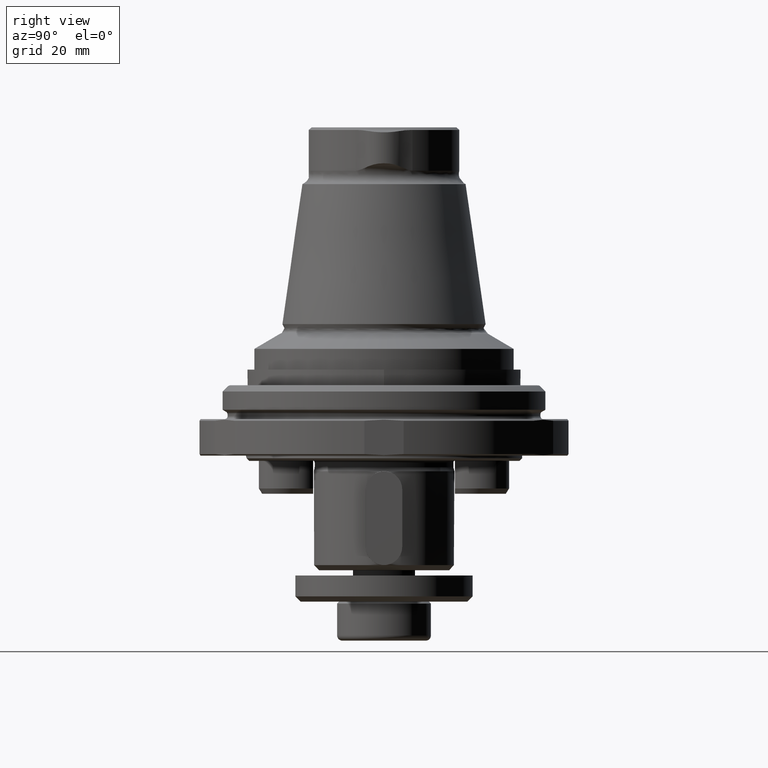
[diagram: clean part render]
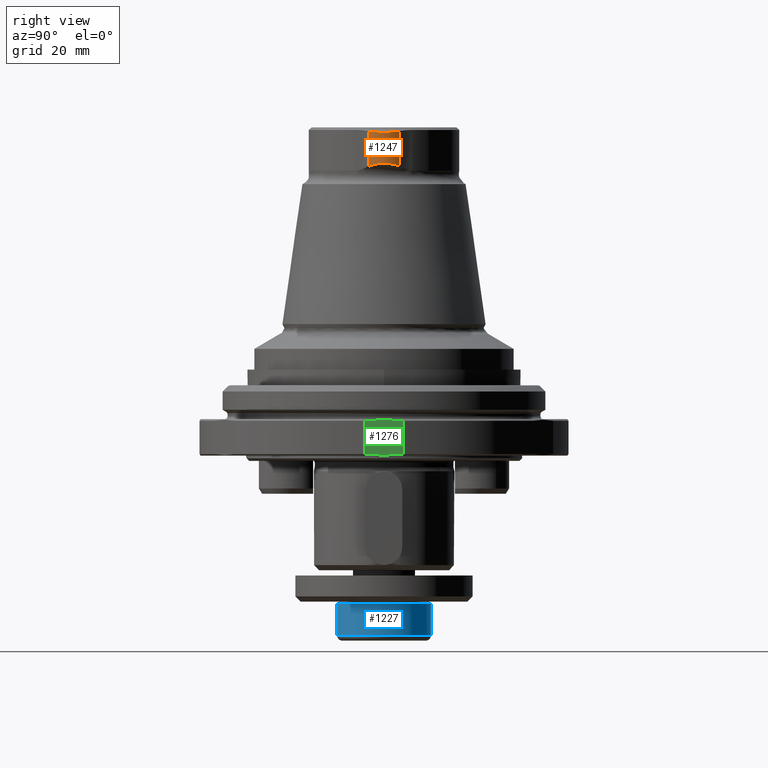
[diagram: same view with three faces highlighted in distinct colors, each labeled with its STEP entity id]
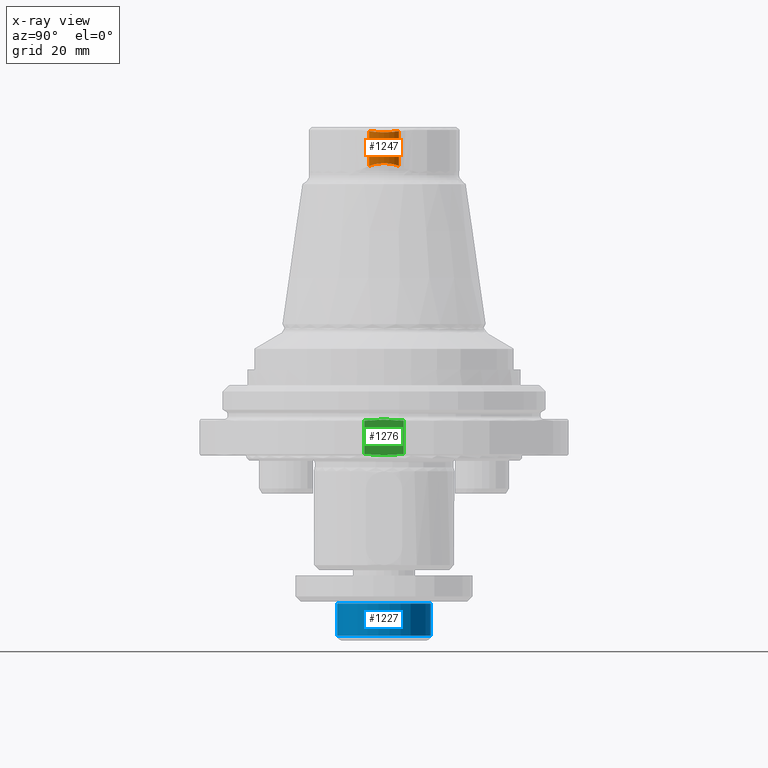
[diagram: x-ray of the same camera — body ghosted, the three highlighted faces saturated]
A machine part, right view with three faces highlighted in distinct colors.
The next image is the same camera in x-ray (body ghosted, the three faces saturated) — at least one of them is partly hidden behind the body in this view.
Their STEP definitions:

[orange] entity #1247 — the highlighted cylindrical surface (edge-blend (fillet) strip) has radius 5 mm, axis along (0, 0, 1).
#141=CYLINDRICAL_SURFACE('',#1387,5.);
#181=LINE('',#2105,#225);
#182=LINE('',#2123,#226);
#225=VECTOR('',#1654,1000.);
#226=VECTOR('',#1661,1000.);
#398=ORIENTED_EDGE('',*,*,#666,.T.);
#399=ORIENTED_EDGE('',*,*,#639,.F.);
#400=ORIENTED_EDGE('',*,*,#662,.F.);
#401=ORIENTED_EDGE('',*,*,#667,.F.);
#402=ORIENTED_EDGE('',*,*,#665,.F.);
#403=ORIENTED_EDGE('',*,*,#668,.F.);
#639=EDGE_CURVE('',#794,#795,#881,.T.);
#662=EDGE_CURVE('',#808,#794,#181,.T.);
#665=EDGE_CURVE('',#809,#810,#892,.T.);
#666=EDGE_CURVE('',#811,#795,#182,.T.);
#667=EDGE_CURVE('',#810,#808,#893,.T.);
#668=EDGE_CURVE('',#811,#809,#894,.T.);
#794=VERTEX_POINT('',#2023);
#795=VERTEX_POINT('',#2029);
#808=VERTEX_POINT('',#2106);
#809=VERTEX_POINT('',#2114);
#810=VERTEX_POINT('',#2115);
#811=VERTEX_POINT('',#2124);
#881=B_SPLINE_CURVE_WITH_KNOTS('',3,(#2024,#2025,#2026,#2027,#2028),
 .UNSPECIFIED.,.F.,.F.,(4,1,4),(2.43235081594486E-7,0.00304463201220103,
0.00608902078932047),.UNSPECIFIED.);
#892=B_SPLINE_CURVE_WITH_KNOTS('',3,(#2116,#2117,#2118,#2119,#2120,#2121),
 .UNSPECIFIED.,.F.,.F.,(4,1,1,4),(6.11526740180767E-7,0.00309143559384419,
0.00463684762739619,0.00618225966094819),.UNSPECIFIED.);
#893=B_SPLINE_CURVE_WITH_KNOTS('',3,(#2125,#2126,#2127,#2128),
 .UNSPECIFIED.,.F.,.F.,(4,4),(6.19763373144005E-7,6.61840456631958E-6),
 .UNSPECIFIED.);
#894=B_SPLINE_CURVE_WITH_KNOTS('',3,(#2129,#2130,#2131,#2132),
 .UNSPECIFIED.,.F.,.F.,(4,4),(2.57948989344727E-7,6.25659018116289E-6),
 .UNSPECIFIED.);
#982=EDGE_LOOP('',(#398,#399,#400,#401,#402,#403));
#1112=FACE_BOUND('',#982,.T.);
#1247=ADVANCED_FACE('',(#1112),#141,.T.);
#1387=AXIS2_PLACEMENT_3D('',#2122,#1659,#1660);
#1654=DIRECTION('',(0.,0.,1.));
#1659=DIRECTION('',(0.,0.,1.));
#1660=DIRECTION('',(1.,-6.12303176911189E-17,0.));
#1661=DIRECTION('',(0.,0.,1.));
#2023=CARTESIAN_POINT('',(14.8381584936901,-2.86445404232643,54.2783187628459));
#2024=CARTESIAN_POINT('',(14.8381584936901,-2.86445404232643,54.2783187628459));
#2025=CARTESIAN_POINT('',(15.4213909625062,-2.03002658754608,54.1274544324019));
#2026=CARTESIAN_POINT('',(16.0585821828448,-0.00868768835308336,53.9721276936405));
#2027=CARTESIAN_POINT('',(15.4214370667996,2.02996062639018,54.1274425066369));
#2028=CARTESIAN_POINT('',(14.8381584936905,2.86445404232674,54.2783187628457));
#2029=CARTESIAN_POINT('',(14.8381584936905,2.86445404232674,54.2783187628457));
#2105=CARTESIAN_POINT('',(14.8381584936901,-2.86445404232643,-42.9121161900425));
#2106=CARTESIAN_POINT('',(14.8381584936901,-2.86445404232643,47.5847638553421));
#2114=CARTESIAN_POINT('',(14.8414076559227,2.85979986012107,47.5867042751537));
#2115=CARTESIAN_POINT('',(14.8414076559229,-2.85979986011975,47.5867042751537));
#2116=CARTESIAN_POINT('',(14.8414076559227,2.85979986012107,47.5867042751537));
#2117=CARTESIAN_POINT('',(15.4064762990176,2.04940159021794,47.9236247436881));
#2118=CARTESIAN_POINT('',(15.9061961472585,0.523737846933082,48.2058557264284));
#2119=CARTESIAN_POINT('',(15.5741809880368,-1.55610689564184,48.0172381742901));
#2120=CARTESIAN_POINT('',(15.1239251017811,-2.45462492758952,47.7551544473422));
#2121=CARTESIAN_POINT('',(14.8414076559229,-2.85979986011975,47.5867042751537));
#2122=CARTESIAN_POINT('',(10.7400000000008,4.77778157569865E-13,-42.9121161900425));
#2123=CARTESIAN_POINT('',(14.8381584936905,2.86445404232674,-42.9121161900425));
#2124=CARTESIAN_POINT('',(14.8381584936905,2.86445404232674,47.5847638553427));
#2125=CARTESIAN_POINT('',(14.8414076559229,-2.85979986011974,47.5867042751537));
#2126=CARTESIAN_POINT('',(14.8403252086262,-2.8613522616329,47.5860588692285));
#2127=CARTESIAN_POINT('',(14.8392421536976,-2.86290365597054,47.5854120646943));
#2128=CARTESIAN_POINT('',(14.83815849369,-2.86445404232647,47.5847638553423));
#2129=CARTESIAN_POINT('',(14.8381584936905,2.86445404232674,47.5847638553427));
#2130=CARTESIAN_POINT('',(14.8392421536979,2.86290365597116,47.5854120646946));
#2131=CARTESIAN_POINT('',(14.8403252086261,2.86135226163387,47.5860588692287));
#2132=CARTESIAN_POINT('',(14.8414076559227,2.85979986012107,47.5867042751537));

[blue] entity #1227 — the highlighted cylindrical surface (bore or boss wall) has radius 9 mm, axis along (0, 0, 1).
#70=CIRCLE('',#1349,9.);
#71=CIRCLE('',#1351,9.);
#132=CYLINDRICAL_SURFACE('',#1350,9.);
#334=ORIENTED_EDGE('',*,*,#625,.T.);
#335=ORIENTED_EDGE('',*,*,#626,.F.);
#625=EDGE_CURVE('',#780,#780,#70,.T.);
#626=EDGE_CURVE('',#781,#781,#71,.T.);
#780=VERTEX_POINT('',#1973);
#781=VERTEX_POINT('',#1976);
#954=EDGE_LOOP('',(#334));
#955=EDGE_LOOP('',(#335));
#1084=FACE_BOUND('',#954,.T.);
#1085=FACE_BOUND('',#955,.T.);
#1227=ADVANCED_FACE('',(#1084,#1085),#132,.T.);
#1349=AXIS2_PLACEMENT_3D('',#1972,#1576,#1577);
#1350=AXIS2_PLACEMENT_3D('',#1974,#1578,#1579);
#1351=AXIS2_PLACEMENT_3D('',#1975,#1580,#1581);
#1576=DIRECTION('',(0.,0.,1.));
#1577=DIRECTION('',(-1.23259516440783E-32,-1.,1.66533453693773E-16));
#1578=DIRECTION('',(0.,0.,1.));
#1579=DIRECTION('',(-1.23259516440783E-32,-1.,1.66533453693773E-16));
#1580=DIRECTION('',(0.,0.,1.));
#1581=DIRECTION('',(-1.23259516440783E-32,-1.,1.66533453693773E-16));
#1972=CARTESIAN_POINT('',(0.,0.,-42.4999999144287));
#1973=CARTESIAN_POINT('',(-1.10933564796705E-31,-9.,-42.4999999144287));
#1974=CARTESIAN_POINT('',(0.,0.,-47.9999999144286));
#1975=CARTESIAN_POINT('',(0.,0.,-36.3849999144286));
#1976=CARTESIAN_POINT('',(-1.10933564796705E-31,-9.,-36.3849999144286));

[green] entity #1276 — the highlighted planar face has unit normal (-1, 0, 0).
#190=LINE('',#2307,#234);
#191=LINE('',#2314,#235);
#234=VECTOR('',#1785,1000.);
#235=VECTOR('',#1788,1000.);
#510=ORIENTED_EDGE('',*,*,#721,.F.);
#511=ORIENTED_EDGE('',*,*,#722,.F.);
#512=ORIENTED_EDGE('',*,*,#723,.F.);
#513=ORIENTED_EDGE('',*,*,#703,.F.);
#703=EDGE_CURVE('',#840,#841,#903,.T.);
#721=EDGE_CURVE('',#855,#840,#190,.F.);
#722=EDGE_CURVE('',#856,#855,#910,.T.);
#723=EDGE_CURVE('',#841,#856,#191,.T.);
#840=VERTEX_POINT('',#2249);
#841=VERTEX_POINT('',#2254);
#855=VERTEX_POINT('',#2306);
#856=VERTEX_POINT('',#2313);
#903=B_SPLINE_CURVE_WITH_KNOTS('',3,(#2250,#2251,#2252,#2253),
 .UNSPECIFIED.,.F.,.F.,(4,4),(0.00301971742095615,0.0105389064051034),
 .UNSPECIFIED.);
#910=B_SPLINE_CURVE_WITH_KNOTS('',3,(#2309,#2310,#2311,#2312),
 .UNSPECIFIED.,.F.,.F.,(4,4),(0.0142564267081391,0.0217467200872314),
 .UNSPECIFIED.);
#1030=EDGE_LOOP('',(#510,#511,#512,#513));
#1160=FACE_BOUND('',#1030,.T.);
#1194=PLANE('',#1446);
#1276=ADVANCED_FACE('',(#1160),#1194,.F.);
#1446=AXIS2_PLACEMENT_3D('',#2308,#1786,#1787);
#1785=DIRECTION('',(0.,1.04225259501902E-17,-1.));
#1786=DIRECTION('',(-1.,1.22464679914735E-16,1.27639130439307E-33));
#1787=DIRECTION('',(0.,1.04225259501902E-17,-1.));
#1788=DIRECTION('',(0.,1.04225259501902E-17,-1.));
#2249=CARTESIAN_POINT('',(35.3,-3.76297754444537,-1.29888930010697));
#2250=CARTESIAN_POINT('',(35.3,-3.76297754444537,-1.29888930010697));
#2251=CARTESIAN_POINT('',(35.3,-1.26556050101683,-1.03416467324677));
#2252=CARTESIAN_POINT('',(35.3,1.24362282730961,-1.0318392937105));
#2253=CARTESIAN_POINT('',(35.3,3.76297754444536,-1.29888930010697));
#2254=CARTESIAN_POINT('',(35.3,3.76297754444536,-1.29888930010697));
#2306=CARTESIAN_POINT('',(35.3,-3.76297754444537,-7.69888930010697));
#2307=CARTESIAN_POINT('',(35.3,-3.76297754444537,-0.998889300106966));
#2308=CARTESIAN_POINT('',(35.3,-4.18751036363768E-15,-4.49888930010696));
#2309=CARTESIAN_POINT('',(35.3,3.76297754444536,-7.69888930010697));
#2310=CARTESIAN_POINT('',(35.3,1.2436228273096,-7.96593930650343));
#2311=CARTESIAN_POINT('',(35.3,-1.26556050101684,-7.96361392696716));
#2312=CARTESIAN_POINT('',(35.3,-3.76297754444538,-7.69888930010696));
#2313=CARTESIAN_POINT('',(35.3,3.76297754444536,-7.69888930010697));
#2314=CARTESIAN_POINT('',(35.3,3.76297754444536,-0.998889300106966));